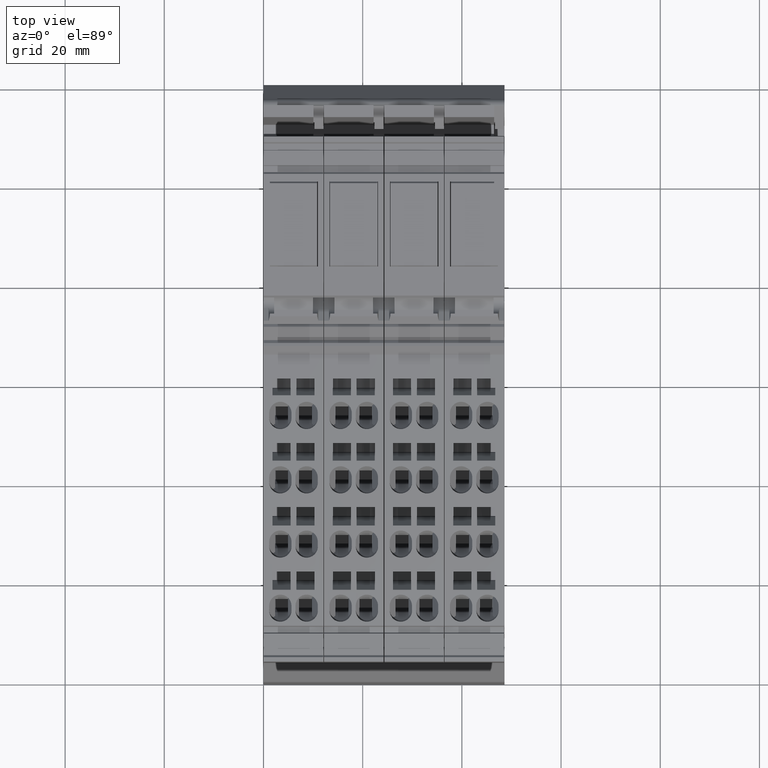
[diagram: clean part render]
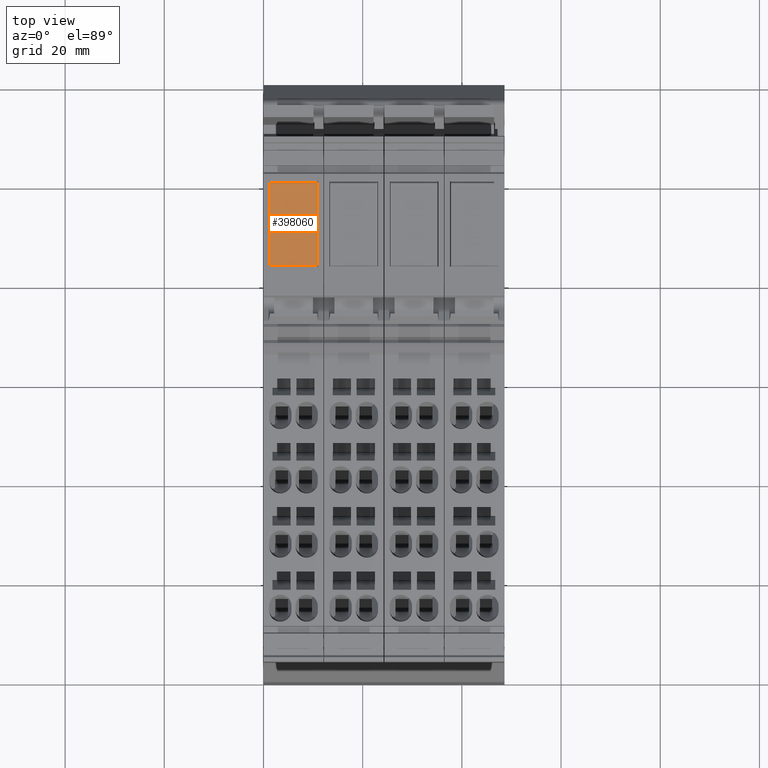
[diagram: same view with one face highlighted and labeled with its STEP entity id]
A machine part, top view. The second image highlights one B-rep face of the part: STEP entity #398060.
In plain terms, the highlighted planar face has unit normal (0, 0, 1).
Its self-contained STEP definition (entity closure, byte-faithful):
#397320=CARTESIAN_POINT('',(106.891351313916,84.4562740524357,
-9.59999999999789));
#397330=VERTEX_POINT('',#397320);
#397360=CARTESIAN_POINT('',(90.426738,84.4562740524359,-9.59999999999789
));
#397370=DIRECTION('',(-1.,1.05193631583234E-14,0.));
#397380=VECTOR('',#397370,1.);
#397390=LINE('',#397360,#397380);
#397400=CARTESIAN_POINT('',(90.2913513139157,84.4562740524359,
-9.59999999999789));
#397410=VERTEX_POINT('',#397400);
#397420=EDGE_CURVE('',#397330,#397410,#397390,.T.);
#397760=CARTESIAN_POINT('',(90.5147590000011,84.4562740524359,
-4.71143400000001));
#397770=DIRECTION('',(1.05193631583234E-14,1.,-0.));
#397780=DIRECTION('',(-1.,1.05193631583234E-14,0.));
#397790=AXIS2_PLACEMENT_3D('',#397760,#397770,#397780);
#397800=PLANE('',#397790);
#397810=ORIENTED_EDGE('',*,*,#397420,.T.);
#397820=CARTESIAN_POINT('',(106.891351313916,84.4562740524357,-0.25));
#397830=DIRECTION('',(0.,0.,1.));
#397840=VECTOR('',#397830,1.);
#397850=LINE('',#397820,#397840);
#397860=CARTESIAN_POINT('',(106.891351313916,84.4562740524357,
-0.0999999999999872));
#397870=VERTEX_POINT('',#397860);
#397880=EDGE_CURVE('',#397330,#397870,#397850,.T.);
#397890=ORIENTED_EDGE('',*,*,#397880,.F.);
#397900=CARTESIAN_POINT('',(90.426738,84.4562740524359,
-0.0999999999999872));
#397910=DIRECTION('',(1.,-1.05193631583234E-14,0.));
#397920=VECTOR('',#397910,1.);
#397930=LINE('',#397900,#397920);
#397940=CARTESIAN_POINT('',(90.2913513139157,84.4562740524359,
-0.0999999999999872));
#397950=VERTEX_POINT('',#397940);
#397960=EDGE_CURVE('',#397950,#397870,#397930,.T.);
#397970=ORIENTED_EDGE('',*,*,#397960,.T.);
#397980=CARTESIAN_POINT('',(90.2913513139157,84.4562740524359,-0.25));
#397990=DIRECTION('',(0.,0.,-1.));
#398000=VECTOR('',#397990,1.);
#398010=LINE('',#397980,#398000);
#398020=EDGE_CURVE('',#397950,#397410,#398010,.T.);
#398030=ORIENTED_EDGE('',*,*,#398020,.F.);
#398040=EDGE_LOOP('',(#398030,#397970,#397890,#397810));
#398050=FACE_OUTER_BOUND('',#398040,.T.);
#398060=ADVANCED_FACE('',(#398050),#397800,.T.);